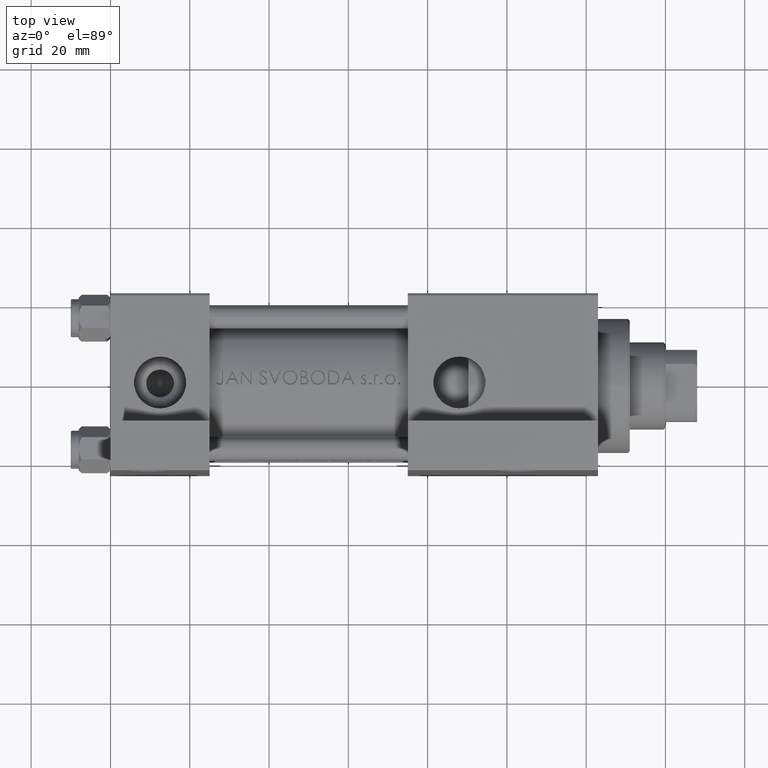
[diagram: clean part render]
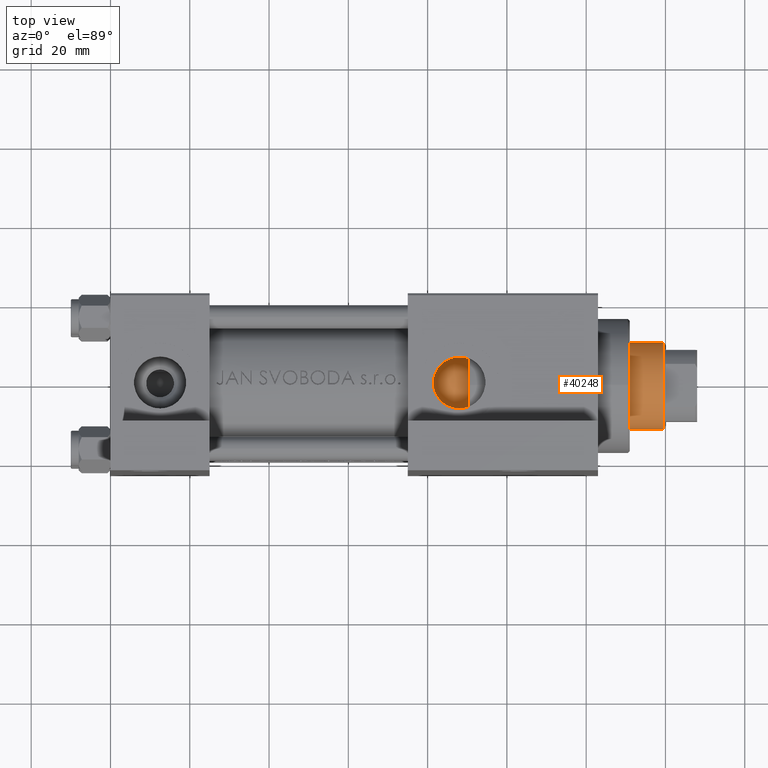
[diagram: same view with one face highlighted and labeled with its STEP entity id]
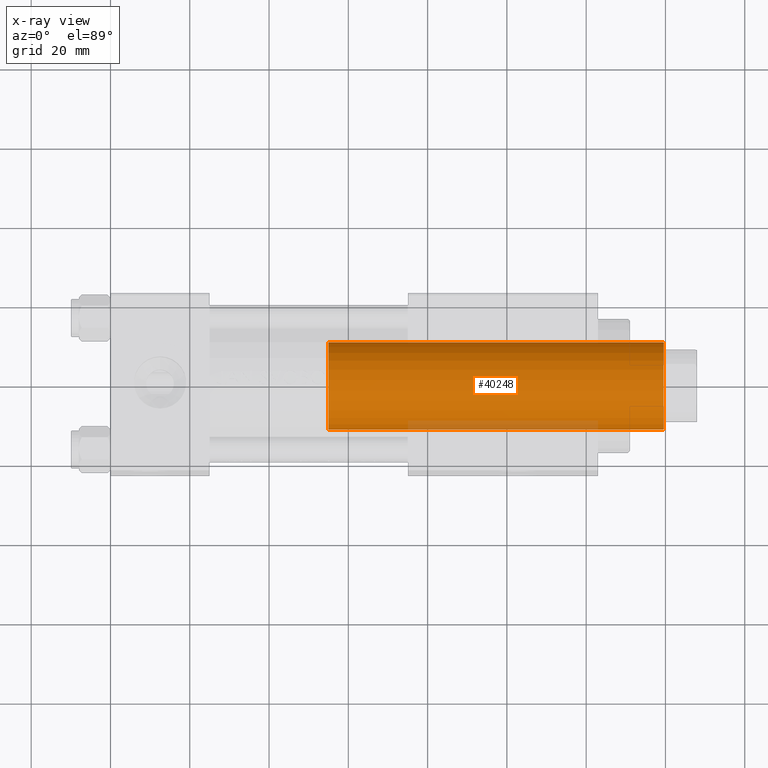
[diagram: x-ray of the same camera — body ghosted, the highlighted face saturated]
A machine part, top view. The second image highlights one B-rep face of the part: STEP entity #40248.
The next image is the same camera in x-ray: the body ghosted, the highlighted face saturated — about 6% of this face is hidden behind the body in this view.
In plain terms, the highlighted cylindrical surface (partial cylindrical patch) has radius 11 mm, axis along (-1, 0, 0).
Its self-contained STEP definition (entity closure, byte-faithful):
#2632 = DIRECTION ( 'NONE',  ( 1.000000000000000000, 0.000000000000000000, 0.000000000000000000 ) ) ;
#3693 = LINE ( 'NONE', #40247, #34681 ) ;
#7468 = DIRECTION ( 'NONE',  ( 1.000000000000000000, 0.000000000000000000, 0.000000000000000000 ) ) ;
#8825 = CIRCLE ( 'NONE', #23462, 11.00000000000000000 ) ;
#10273 = CARTESIAN_POINT ( 'NONE',  ( 11.00000000000000000, 1.347111479062088405E-15, 114.5000000000000142 ) ) ;
#11730 = VERTEX_POINT ( 'NONE', #10273 ) ;
#12708 = VERTEX_POINT ( 'NONE', #40562 ) ;
#14943 = DIRECTION ( 'NONE',  ( -1.000000000000000000, 0.000000000000000000, 0.000000000000000000 ) ) ;
#17350 = EDGE_LOOP ( 'NONE', ( #45874, #47453, #18545, #21431 ) ) ;
#18545 = ORIENTED_EDGE ( 'NONE', *, *, #25430, .T. ) ;
#20156 = FACE_OUTER_BOUND ( 'NONE', #17350, .T. ) ;
#20686 = CARTESIAN_POINT ( 'NONE',  ( 0.000000000000000000, 0.000000000000000000, 30.00000000000000000 ) ) ;
#21431 = ORIENTED_EDGE ( 'NONE', *, *, #22212, .T. ) ;
#21901 = CARTESIAN_POINT ( 'NONE',  ( 0.000000000000000000, 0.000000000000000000, 114.5000000000000142 ) ) ;
#22141 = CARTESIAN_POINT ( 'NONE',  ( 11.00000000000000000, 1.347111479062088405E-15, 115.0000000000000000 ) ) ;
#22212 = EDGE_CURVE ( 'NONE', #26111, #12708, #33139, .T. ) ;
#22617 = LINE ( 'NONE', #22141, #34200 ) ;
#23462 = AXIS2_PLACEMENT_3D ( 'NONE', #21901, #43533, #7468 ) ;
#25430 = EDGE_CURVE ( 'NONE', #30010, #26111, #3693, .T. ) ;
#25813 = DIRECTION ( 'NONE',  ( -0.000000000000000000, -0.000000000000000000, -1.000000000000000000 ) ) ;
#26111 = VERTEX_POINT ( 'NONE', #45440 ) ;
#30010 = VERTEX_POINT ( 'NONE', #41704 ) ;
#31925 = AXIS2_PLACEMENT_3D ( 'NONE', #37290, #38658, #14943 ) ;
#33139 = CIRCLE ( 'NONE', #45422, 11.00000000000000000 ) ;
#33877 = EDGE_CURVE ( 'NONE', #11730, #30010, #8825, .T. ) ;
#34200 = VECTOR ( 'NONE', #47384, 1000.000000000000000 ) ;
#34681 = VECTOR ( 'NONE', #25813, 1000.000000000000000 ) ;
#35349 = DIRECTION ( 'NONE',  ( 0.000000000000000000, 0.000000000000000000, 1.000000000000000000 ) ) ;
#37290 = CARTESIAN_POINT ( 'NONE',  ( 0.000000000000000000, 0.000000000000000000, 115.0000000000000000 ) ) ;
#38658 = DIRECTION ( 'NONE',  ( -0.000000000000000000, -0.000000000000000000, -1.000000000000000000 ) ) ;
#39056 = EDGE_CURVE ( 'NONE', #11730, #12708, #22617, .T. ) ;
#40247 = CARTESIAN_POINT ( 'NONE',  ( -11.00000000000000000, 0.000000000000000000, 115.0000000000000000 ) ) ;
#40248 = ADVANCED_FACE ( 'NONE', ( #20156 ), #42266, .T. ) ;
#40562 = CARTESIAN_POINT ( 'NONE',  ( 11.00000000000000000, 1.347111479062088405E-15, 30.00000000000000000 ) ) ;
#41704 = CARTESIAN_POINT ( 'NONE',  ( -11.00000000000000000, 0.000000000000000000, 114.5000000000000142 ) ) ;
#42266 = CYLINDRICAL_SURFACE ( 'NONE', #31925, 11.00000000000000000 ) ;
#43533 = DIRECTION ( 'NONE',  ( 0.000000000000000000, 0.000000000000000000, -1.000000000000000000 ) ) ;
#45422 = AXIS2_PLACEMENT_3D ( 'NONE', #20686, #35349, #2632 ) ;
#45440 = CARTESIAN_POINT ( 'NONE',  ( -11.00000000000000000, 0.000000000000000000, 30.00000000000000000 ) ) ;
#45874 = ORIENTED_EDGE ( 'NONE', *, *, #39056, .F. ) ;
#47384 = DIRECTION ( 'NONE',  ( -0.000000000000000000, -0.000000000000000000, -1.000000000000000000 ) ) ;
#47453 = ORIENTED_EDGE ( 'NONE', *, *, #33877, .T. ) ;